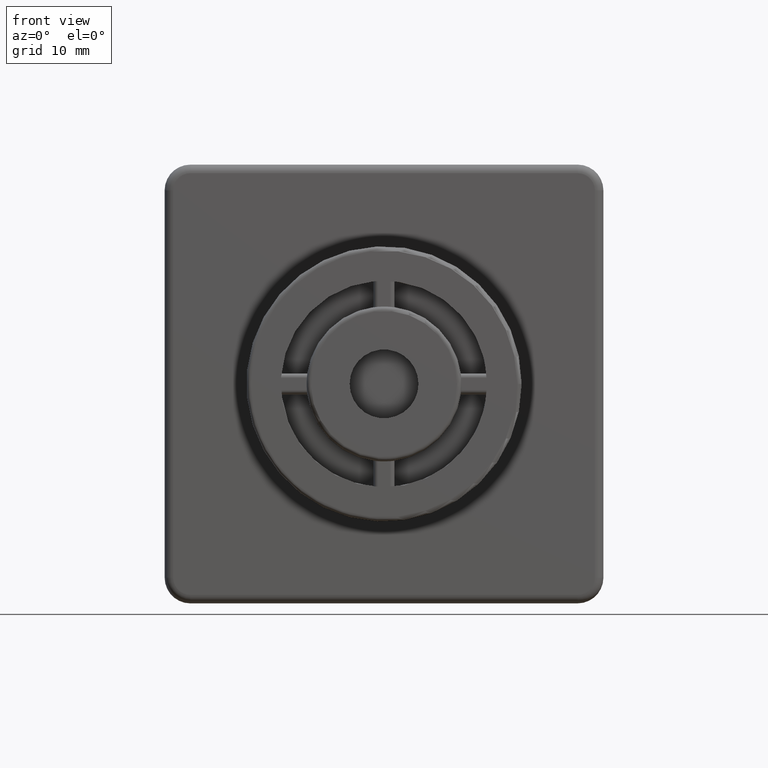
[diagram: clean part render]
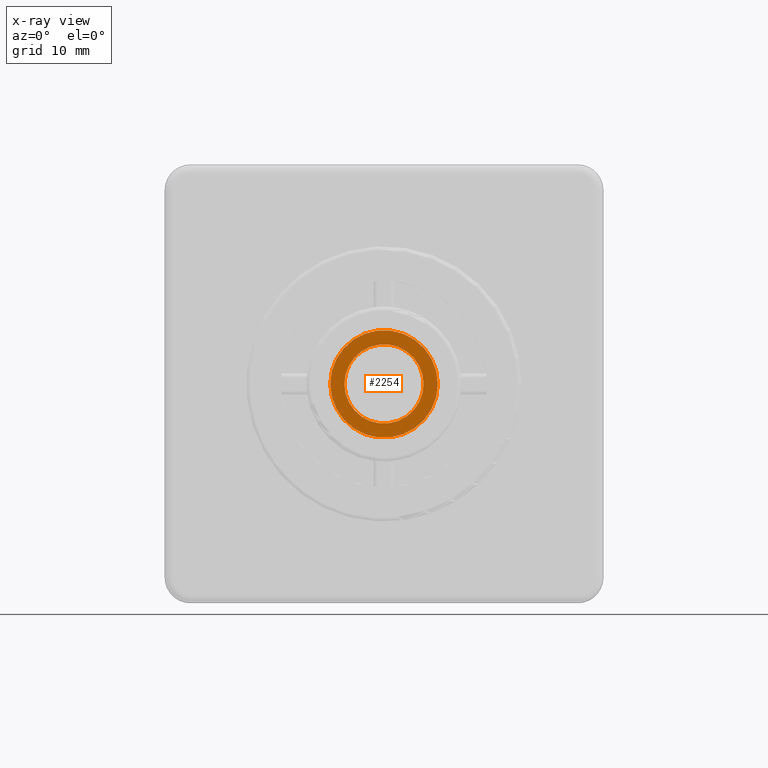
[diagram: x-ray — body ghosted, one internal face saturated and labeled with its STEP entity id]
A machine part, front view, then the same camera in x-ray: the body is ghosted and one INTERNAL B-rep face — a face not visible from any outside direction — is saturated and labeled: STEP entity #2254.
In plain terms, the highlighted planar face has unit normal (0, -1, 0).
Its self-contained STEP definition (entity closure, byte-faithful):
#51=FACE_BOUND('',#453,.T.);
#96=CIRCLE('',#2426,6.25);
#97=CIRCLE('',#2428,4.6);
#220=PLANE('',#2427);
#302=FACE_OUTER_BOUND('',#452,.T.);
#452=EDGE_LOOP('',(#1676));
#453=EDGE_LOOP('',(#1677));
#1002=VERTEX_POINT('',#3618);
#1003=VERTEX_POINT('',#3621);
#1254=EDGE_CURVE('',#1002,#1002,#96,.T.);
#1255=EDGE_CURVE('',#1003,#1003,#97,.T.);
#1676=ORIENTED_EDGE('',*,*,#1254,.F.);
#1677=ORIENTED_EDGE('',*,*,#1255,.F.);
#2254=ADVANCED_FACE('',(#302,#51),#220,.F.);
#2426=AXIS2_PLACEMENT_3D('',#3619,#2796,#2797);
#2427=AXIS2_PLACEMENT_3D('',#3620,#2798,#2799);
#2428=AXIS2_PLACEMENT_3D('',#3622,#2800,#2801);
#2796=DIRECTION('center_axis',(6.34413156928661E-17,-1.,0.));
#2797=DIRECTION('ref_axis',(-1.,-6.34413156928661E-17,0.));
#2798=DIRECTION('center_axis',(6.34413156928661E-17,-1.,0.));
#2799=DIRECTION('ref_axis',(0.,0.,-1.));
#2800=DIRECTION('center_axis',(-6.34413156928661E-17,1.,0.));
#2801=DIRECTION('ref_axis',(-1.,0.,0.));
#3618=CARTESIAN_POINT('',(6.25,10.,-7.65404249467096E-16));
#3619=CARTESIAN_POINT('Origin',(-8.88178419700125E-16,10.,0.));
#3620=CARTESIAN_POINT('Origin',(-1.2884691582295E-15,10.,1.48029736616688E-16));
#3621=CARTESIAN_POINT('',(4.6,10.,-5.63337527607783E-16));
#3622=CARTESIAN_POINT('Origin',(-8.88178419700125E-16,10.,0.));